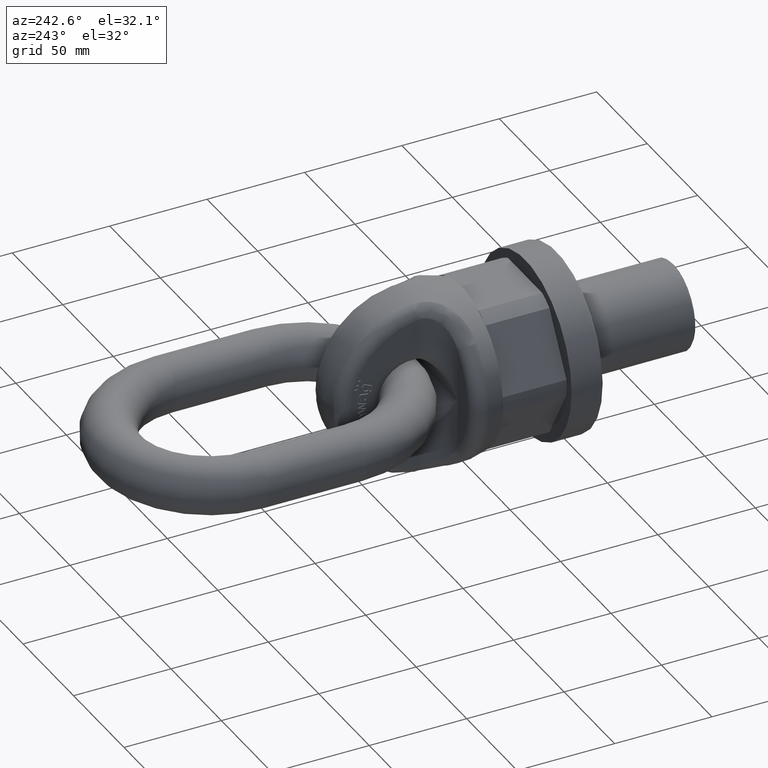
[diagram: clean part render]
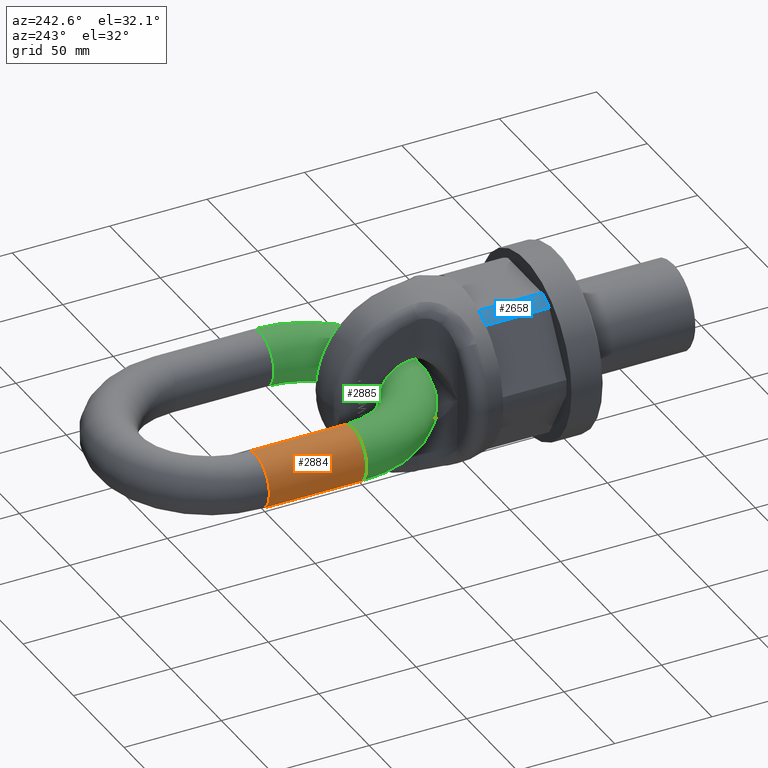
[diagram: same view with three faces highlighted in distinct colors, each labeled with its STEP entity id]
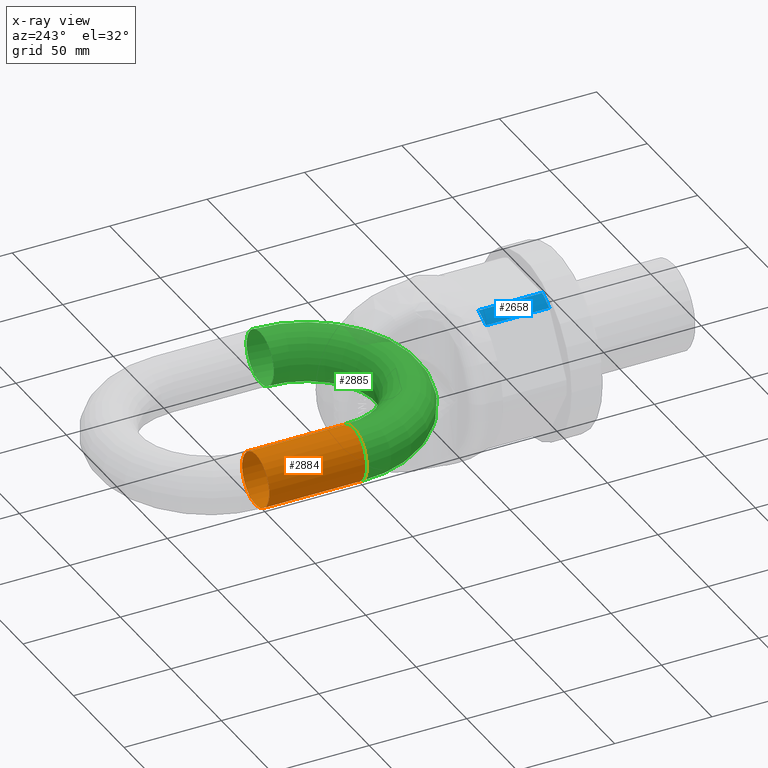
[diagram: x-ray of the same camera — body ghosted, the three highlighted faces saturated]
A machine part, auxiliary view with three faces highlighted in distinct colors.
The next image is the same camera in x-ray (body ghosted, the three faces saturated) — at least one of them is partly hidden behind the body in this view.
Their STEP definitions:

[orange] entity #2884 — the highlighted cylindrical surface (bore or boss wall) has radius 13.5 mm, axis along (0, 1, 0).
#2039=CYLINDRICAL_SURFACE('',#5803,13.5);
#2884=ADVANCED_FACE('',(#3057,#3058),#2039,.T.);
#3057=FACE_BOUND('',#3343,.T.);
#3058=FACE_BOUND('',#3344,.T.);
#3343=EDGE_LOOP('',(#4535));
#3344=EDGE_LOOP('',(#4536));
#4535=ORIENTED_EDGE('',*,*,#5533,.T.);
#4536=ORIENTED_EDGE('',*,*,#5534,.F.);
#4937=VERTEX_POINT('',#9750);
#4938=VERTEX_POINT('',#9752);
#5533=EDGE_CURVE('',#4937,#4937,#5599,.T.);
#5534=EDGE_CURVE('',#4938,#4938,#5600,.T.);
#5599=CIRCLE('',#5801,13.5);
#5600=CIRCLE('',#5802,13.5);
#5801=AXIS2_PLACEMENT_3D('',#9749,#6553,#6554);
#5802=AXIS2_PLACEMENT_3D('',#9751,#6555,#6556);
#5803=AXIS2_PLACEMENT_3D('',#9753,#6557,#6558);
#6553=DIRECTION('',(-1.01064309961486E-15,1.,0.));
#6554=DIRECTION('',(0.,0.,-1.));
#6555=DIRECTION('',(-1.01064309961486E-15,1.,0.));
#6556=DIRECTION('',(0.,0.,-1.));
#6557=DIRECTION('',(0.,1.,0.));
#6558=DIRECTION('',(0.,0.,1.));
#9749=CARTESIAN_POINT('',(-46.,128.5,0.));
#9750=CARTESIAN_POINT('',(-46.,128.5,-13.5));
#9751=CARTESIAN_POINT('',(-46.,178.5,0.));
#9752=CARTESIAN_POINT('',(-46.,178.5,-13.5));
#9753=CARTESIAN_POINT('',(-46.,128.5,0.));

[blue] entity #2658 — the highlighted cylindrical surface (partial cylindrical patch) has radius 41.1362 mm, axis along (-0, 1, 0).
#1816=FACE_OUTER_BOUND('',#3081,.T.);
#2024=CYLINDRICAL_SURFACE('',#5633,41.1362066797608);
#2048=LINE('',#6607,#2304);
#2062=LINE('',#6635,#2318);
#2304=VECTOR('',#5844,1.);
#2318=VECTOR('',#5868,1.);
#2658=ADVANCED_FACE('',(#1816),#2024,.T.);
#3081=EDGE_LOOP('',(#3416,#3417,#3418,#3419));
#3416=ORIENTED_EDGE('',*,*,#4947,.F.);
#3417=ORIENTED_EDGE('',*,*,#4972,.T.);
#3418=ORIENTED_EDGE('',*,*,#4977,.T.);
#3419=ORIENTED_EDGE('',*,*,#4958,.T.);
#4549=VERTEX_POINT('',#6583);
#4550=VERTEX_POINT('',#6585);
#4560=VERTEX_POINT('',#6608);
#4569=VERTEX_POINT('',#6636);
#4947=EDGE_CURVE('',#4549,#4550,#5541,.T.);
#4958=EDGE_CURVE('',#4560,#4550,#2048,.T.);
#4972=EDGE_CURVE('',#4549,#4569,#2062,.T.);
#4977=EDGE_CURVE('',#4569,#4560,#5549,.T.);
#5541=CIRCLE('',#5609,41.1362066797608);
#5549=CIRCLE('',#5625,41.1362066797608);
#5609=AXIS2_PLACEMENT_3D('',#6584,#5823,#5824);
#5625=AXIS2_PLACEMENT_3D('',#6643,#5877,#5878);
#5633=AXIS2_PLACEMENT_3D('',#6651,#5893,#5894);
#5823=DIRECTION('',(4.81111242522174E-17,-1.,0.));
#5824=DIRECTION('',(-1.,-8.43404687010335E-17,0.));
#5844=DIRECTION('',(2.4492935982947E-17,-1.,0.));
#5868=DIRECTION('',(-2.4492935982947E-17,1.,0.));
#5877=DIRECTION('',(0.,-1.,0.));
#5878=DIRECTION('',(0.,0.,-1.));
#5893=DIRECTION('',(-2.4492935982947E-17,1.,0.));
#5894=DIRECTION('',(-1.,-2.4492935982947E-17,0.));
#6583=CARTESIAN_POINT('',(-16.9096865730858,16.3333333333333,37.5));
#6584=CARTESIAN_POINT('',(-4.00051287721468E-16,16.3333333333333,0.));
#6585=CARTESIAN_POINT('',(-24.0211093553735,16.3333333333333,33.394218142325));
#6607=CARTESIAN_POINT('',(-24.0211093553735,2.07083935363146E-16,33.394218142325));
#6608=CARTESIAN_POINT('',(-24.0211093553735,49.,33.394218142325));
#6635=CARTESIAN_POINT('',(-16.9096865730858,-4.14167870726291E-16,37.5));
#6636=CARTESIAN_POINT('',(-16.9096865730858,49.,37.5));
#6643=CARTESIAN_POINT('',(-1.20015386316441E-15,49.,0.));
#6651=CARTESIAN_POINT('',(0.,0.,0.));

[green] entity #2885 — the highlighted toroidal blend (fillet) surface has major radius 46 mm and minor (blend) radius 13.5 mm.
#1804=TOROIDAL_SURFACE('',#5805,46.,13.5);
#2885=ADVANCED_FACE('',(#3059,#3060),#1804,.T.);
#3059=FACE_BOUND('',#3345,.T.);
#3060=FACE_BOUND('',#3346,.T.);
#3345=EDGE_LOOP('',(#4537));
#3346=EDGE_LOOP('',(#4538));
#4537=ORIENTED_EDGE('',*,*,#5535,.T.);
#4538=ORIENTED_EDGE('',*,*,#5533,.F.);
#4937=VERTEX_POINT('',#9750);
#4939=VERTEX_POINT('',#9755);
#5533=EDGE_CURVE('',#4937,#4937,#5599,.T.);
#5535=EDGE_CURVE('',#4939,#4939,#5601,.T.);
#5599=CIRCLE('',#5801,13.5);
#5601=CIRCLE('',#5804,13.5);
#5801=AXIS2_PLACEMENT_3D('',#9749,#6553,#6554);
#5804=AXIS2_PLACEMENT_3D('',#9754,#6559,#6560);
#5805=AXIS2_PLACEMENT_3D('',#9756,#6561,#6562);
#6553=DIRECTION('',(-1.01064309961486E-15,1.,0.));
#6554=DIRECTION('',(0.,0.,-1.));
#6559=DIRECTION('',(0.,-1.,0.));
#6560=DIRECTION('',(0.,0.,-1.));
#6561=DIRECTION('',(0.,0.,-1.));
#6562=DIRECTION('',(-1.,0.,0.));
#9749=CARTESIAN_POINT('',(-46.,128.5,0.));
#9750=CARTESIAN_POINT('',(-46.,128.5,-13.5));
#9754=CARTESIAN_POINT('',(46.,128.5,0.));
#9755=CARTESIAN_POINT('',(46.,128.5,-13.5));
#9756=CARTESIAN_POINT('',(2.77555756156289E-14,128.5,0.));